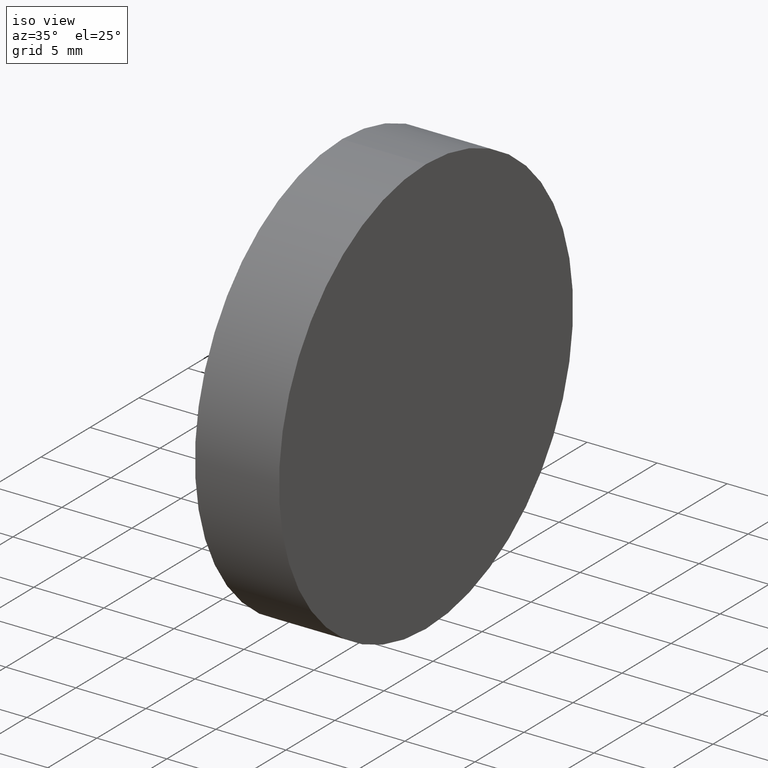
[diagram: clean part render]
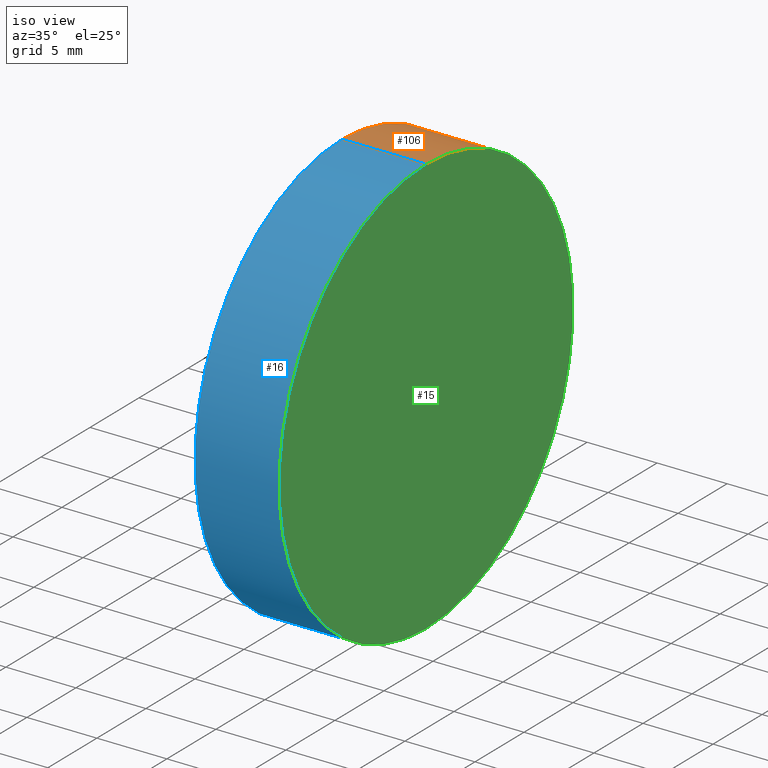
[diagram: same view with three faces highlighted in distinct colors, each labeled with its STEP entity id]
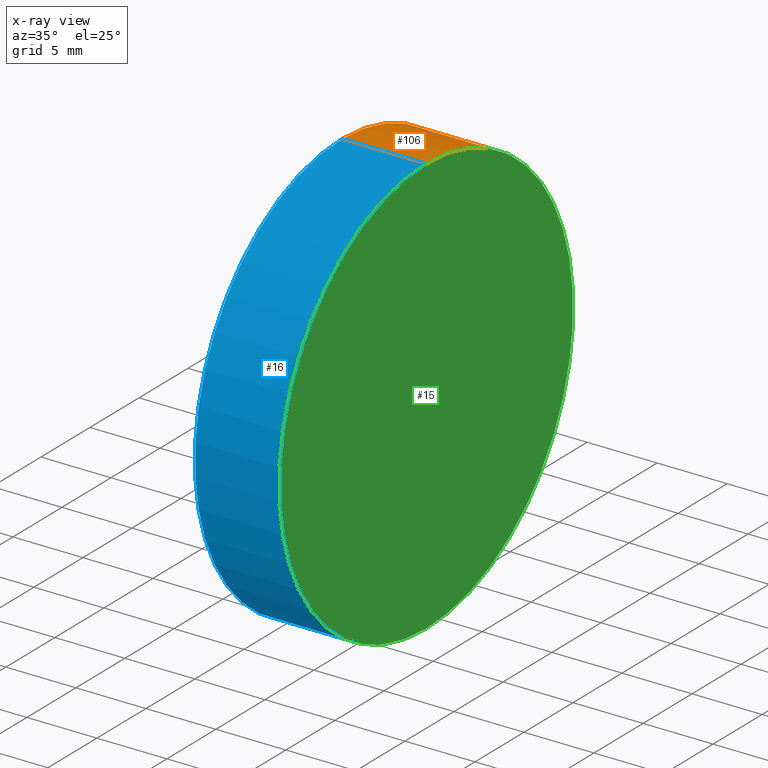
[diagram: x-ray of the same camera — body ghosted, the three highlighted faces saturated]
A machine part, iso view with three faces highlighted in distinct colors.
The next image is the same camera in x-ray (body ghosted, the three faces saturated) — at least one of them is partly hidden behind the body in this view.
Their STEP definitions:

[orange] entity #106 — the highlighted cylindrical surface (partial cylindrical patch) has radius 15 mm, axis along (-1, -0, -0).
#2 = LINE ( 'NONE', #85, #129 ) ;
#4 = CYLINDRICAL_SURFACE ( 'NONE', #107, 15.00000000000000000 ) ;
#7 = CARTESIAN_POINT ( 'NONE',  ( 262.8849040828112600, 77.31136001242396100, -15.00000000000000000 ) ) ;
#11 = FACE_OUTER_BOUND ( 'NONE', #95, .T. ) ;
#12 = DIRECTION ( 'NONE',  ( 0.0000000000000000000, 0.0000000000000000000, 1.000000000000000000 ) ) ;
#27 = VERTEX_POINT ( 'NONE', #48 ) ;
#31 = AXIS2_PLACEMENT_3D ( 'NONE', #136, #94, #103 ) ;
#36 = ORIENTED_EDGE ( 'NONE', *, *, #98, .T. ) ;
#38 = DIRECTION ( 'NONE',  ( -1.000000000000000000, -0.0000000000000000000, -0.0000000000000000000 ) ) ;
#43 = VERTEX_POINT ( 'NONE', #7 ) ;
#45 = VERTEX_POINT ( 'NONE', #99 ) ;
#48 = CARTESIAN_POINT ( 'NONE',  ( 256.8849040828112000, 77.31136001242396100, 15.00000000000000000 ) ) ;
#49 = DIRECTION ( 'NONE',  ( -1.000000000000000000, -0.0000000000000000000, -0.0000000000000000000 ) ) ;
#50 = CARTESIAN_POINT ( 'NONE',  ( 262.8849040828112600, 77.31136001242396100, 15.00000000000000000 ) ) ;
#52 = ORIENTED_EDGE ( 'NONE', *, *, #67, .F. ) ;
#55 = EDGE_CURVE ( 'NONE', #43, #45, #2, .T. ) ;
#56 = ORIENTED_EDGE ( 'NONE', *, *, #55, .T. ) ;
#67 = EDGE_CURVE ( 'NONE', #27, #45, #121, .T. ) ;
#70 = ORIENTED_EDGE ( 'NONE', *, *, #89, .F. ) ;
#71 = AXIS2_PLACEMENT_3D ( 'NONE', #90, #73, #12 ) ;
#73 = DIRECTION ( 'NONE',  ( -1.000000000000000000, -0.0000000000000000000, -0.0000000000000000000 ) ) ;
#80 = DIRECTION ( 'NONE',  ( -1.000000000000000000, -0.0000000000000000000, -0.0000000000000000000 ) ) ;
#82 = VERTEX_POINT ( 'NONE', #50 ) ;
#83 = LINE ( 'NONE', #116, #111 ) ;
#85 = CARTESIAN_POINT ( 'NONE',  ( 251.3749016906533600, 77.31136001242396100, -15.00000000000000000 ) ) ;
#89 = EDGE_CURVE ( 'NONE', #82, #27, #83, .T. ) ;
#90 = CARTESIAN_POINT ( 'NONE',  ( 262.8849040828112600, 77.31136001242396100, 0.0000000000000000000 ) ) ;
#92 = CARTESIAN_POINT ( 'NONE',  ( 251.3749016906533600, 77.31136001242396100, 0.0000000000000000000 ) ) ;
#94 = DIRECTION ( 'NONE',  ( -1.000000000000000000, -0.0000000000000000000, -0.0000000000000000000 ) ) ;
#95 = EDGE_LOOP ( 'NONE', ( #36, #56, #52, #70 ) ) ;
#98 = EDGE_CURVE ( 'NONE', #82, #43, #138, .T. ) ;
#99 = CARTESIAN_POINT ( 'NONE',  ( 256.8849040828112000, 77.31136001242396100, -15.00000000000000000 ) ) ;
#103 = DIRECTION ( 'NONE',  ( 0.0000000000000000000, 0.0000000000000000000, 1.000000000000000000 ) ) ;
#106 = ADVANCED_FACE ( 'NONE', ( #11 ), #4, .T. ) ;
#107 = AXIS2_PLACEMENT_3D ( 'NONE', #92, #80, #126 ) ;
#111 = VECTOR ( 'NONE', #49, 1000.000000000000000 ) ;
#116 = CARTESIAN_POINT ( 'NONE',  ( 251.3749016906533600, 77.31136001242396100, 15.00000000000000000 ) ) ;
#121 = CIRCLE ( 'NONE', #31, 15.00000000000000000 ) ;
#126 = DIRECTION ( 'NONE',  ( 0.0000000000000000000, 0.0000000000000000000, 1.000000000000000000 ) ) ;
#129 = VECTOR ( 'NONE', #38, 1000.000000000000000 ) ;
#136 = CARTESIAN_POINT ( 'NONE',  ( 256.8849040828112000, 77.31136001242396100, 0.0000000000000000000 ) ) ;
#138 = CIRCLE ( 'NONE', #71, 15.00000000000000000 ) ;

[blue] entity #16 — the highlighted cylindrical surface (partial cylindrical patch) has radius 15 mm, axis along (-1, -0, -0).
#2 = LINE ( 'NONE', #85, #129 ) ;
#3 = AXIS2_PLACEMENT_3D ( 'NONE', #125, #139, #40 ) ;
#7 = CARTESIAN_POINT ( 'NONE',  ( 262.8849040828112600, 77.31136001242396100, -15.00000000000000000 ) ) ;
#13 = CYLINDRICAL_SURFACE ( 'NONE', #75, 15.00000000000000000 ) ;
#16 = ADVANCED_FACE ( 'NONE', ( #66 ), #13, .T. ) ;
#19 = ORIENTED_EDGE ( 'NONE', *, *, #89, .T. ) ;
#27 = VERTEX_POINT ( 'NONE', #48 ) ;
#32 = ORIENTED_EDGE ( 'NONE', *, *, #62, .T. ) ;
#37 = CIRCLE ( 'NONE', #3, 15.00000000000000000 ) ;
#38 = DIRECTION ( 'NONE',  ( -1.000000000000000000, -0.0000000000000000000, -0.0000000000000000000 ) ) ;
#39 = CIRCLE ( 'NONE', #104, 15.00000000000000000 ) ;
#40 = DIRECTION ( 'NONE',  ( 0.0000000000000000000, 0.0000000000000000000, 1.000000000000000000 ) ) ;
#43 = VERTEX_POINT ( 'NONE', #7 ) ;
#45 = VERTEX_POINT ( 'NONE', #99 ) ;
#46 = EDGE_CURVE ( 'NONE', #45, #27, #39, .T. ) ;
#48 = CARTESIAN_POINT ( 'NONE',  ( 256.8849040828112000, 77.31136001242396100, 15.00000000000000000 ) ) ;
#49 = DIRECTION ( 'NONE',  ( -1.000000000000000000, -0.0000000000000000000, -0.0000000000000000000 ) ) ;
#50 = CARTESIAN_POINT ( 'NONE',  ( 262.8849040828112600, 77.31136001242396100, 15.00000000000000000 ) ) ;
#54 = EDGE_LOOP ( 'NONE', ( #86, #32, #19, #59 ) ) ;
#55 = EDGE_CURVE ( 'NONE', #43, #45, #2, .T. ) ;
#57 = CARTESIAN_POINT ( 'NONE',  ( 251.3749016906533600, 77.31136001242396100, 0.0000000000000000000 ) ) ;
#59 = ORIENTED_EDGE ( 'NONE', *, *, #46, .F. ) ;
#62 = EDGE_CURVE ( 'NONE', #43, #82, #37, .T. ) ;
#66 = FACE_OUTER_BOUND ( 'NONE', #54, .T. ) ;
#69 = DIRECTION ( 'NONE',  ( 0.0000000000000000000, 0.0000000000000000000, 1.000000000000000000 ) ) ;
#75 = AXIS2_PLACEMENT_3D ( 'NONE', #57, #77, #69 ) ;
#77 = DIRECTION ( 'NONE',  ( -1.000000000000000000, -0.0000000000000000000, -0.0000000000000000000 ) ) ;
#78 = DIRECTION ( 'NONE',  ( -1.000000000000000000, -0.0000000000000000000, -0.0000000000000000000 ) ) ;
#82 = VERTEX_POINT ( 'NONE', #50 ) ;
#83 = LINE ( 'NONE', #116, #111 ) ;
#84 = CARTESIAN_POINT ( 'NONE',  ( 256.8849040828112000, 77.31136001242396100, 0.0000000000000000000 ) ) ;
#85 = CARTESIAN_POINT ( 'NONE',  ( 251.3749016906533600, 77.31136001242396100, -15.00000000000000000 ) ) ;
#86 = ORIENTED_EDGE ( 'NONE', *, *, #55, .F. ) ;
#89 = EDGE_CURVE ( 'NONE', #82, #27, #83, .T. ) ;
#99 = CARTESIAN_POINT ( 'NONE',  ( 256.8849040828112000, 77.31136001242396100, -15.00000000000000000 ) ) ;
#101 = DIRECTION ( 'NONE',  ( 0.0000000000000000000, 0.0000000000000000000, 1.000000000000000000 ) ) ;
#104 = AXIS2_PLACEMENT_3D ( 'NONE', #84, #78, #101 ) ;
#111 = VECTOR ( 'NONE', #49, 1000.000000000000000 ) ;
#116 = CARTESIAN_POINT ( 'NONE',  ( 251.3749016906533600, 77.31136001242396100, 15.00000000000000000 ) ) ;
#125 = CARTESIAN_POINT ( 'NONE',  ( 262.8849040828112600, 77.31136001242396100, 0.0000000000000000000 ) ) ;
#129 = VECTOR ( 'NONE', #38, 1000.000000000000000 ) ;
#139 = DIRECTION ( 'NONE',  ( -1.000000000000000000, -0.0000000000000000000, -0.0000000000000000000 ) ) ;

[green] entity #15 — the highlighted planar face has unit normal (-1, 0, -0).
#3 = AXIS2_PLACEMENT_3D ( 'NONE', #125, #139, #40 ) ;
#5 = ORIENTED_EDGE ( 'NONE', *, *, #98, .F. ) ;
#7 = CARTESIAN_POINT ( 'NONE',  ( 262.8849040828112600, 77.31136001242396100, -15.00000000000000000 ) ) ;
#12 = DIRECTION ( 'NONE',  ( 0.0000000000000000000, 0.0000000000000000000, 1.000000000000000000 ) ) ;
#15 = ADVANCED_FACE ( 'NONE', ( #21 ), #87, .F. ) ;
#21 = FACE_OUTER_BOUND ( 'NONE', #131, .T. ) ;
#37 = CIRCLE ( 'NONE', #3, 15.00000000000000000 ) ;
#40 = DIRECTION ( 'NONE',  ( 0.0000000000000000000, 0.0000000000000000000, 1.000000000000000000 ) ) ;
#43 = VERTEX_POINT ( 'NONE', #7 ) ;
#50 = CARTESIAN_POINT ( 'NONE',  ( 262.8849040828112600, 77.31136001242396100, 15.00000000000000000 ) ) ;
#62 = EDGE_CURVE ( 'NONE', #43, #82, #37, .T. ) ;
#71 = AXIS2_PLACEMENT_3D ( 'NONE', #90, #73, #12 ) ;
#73 = DIRECTION ( 'NONE',  ( -1.000000000000000000, -0.0000000000000000000, -0.0000000000000000000 ) ) ;
#82 = VERTEX_POINT ( 'NONE', #50 ) ;
#87 = PLANE ( 'NONE',  #113 ) ;
#90 = CARTESIAN_POINT ( 'NONE',  ( 262.8849040828112600, 77.31136001242396100, 0.0000000000000000000 ) ) ;
#98 = EDGE_CURVE ( 'NONE', #82, #43, #138, .T. ) ;
#102 = CARTESIAN_POINT ( 'NONE',  ( 262.8849040828112600, 92.31136001242396100, 0.0000000000000000000 ) ) ;
#112 = DIRECTION ( 'NONE',  ( -1.000000000000000000, 0.0000000000000000000, -0.0000000000000000000 ) ) ;
#113 = AXIS2_PLACEMENT_3D ( 'NONE', #102, #112, #114 ) ;
#114 = DIRECTION ( 'NONE',  ( -0.0000000000000000000, 0.0000000000000000000, 1.000000000000000000 ) ) ;
#120 = ORIENTED_EDGE ( 'NONE', *, *, #62, .F. ) ;
#125 = CARTESIAN_POINT ( 'NONE',  ( 262.8849040828112600, 77.31136001242396100, 0.0000000000000000000 ) ) ;
#131 = EDGE_LOOP ( 'NONE', ( #5, #120 ) ) ;
#138 = CIRCLE ( 'NONE', #71, 15.00000000000000000 ) ;
#139 = DIRECTION ( 'NONE',  ( -1.000000000000000000, -0.0000000000000000000, -0.0000000000000000000 ) ) ;